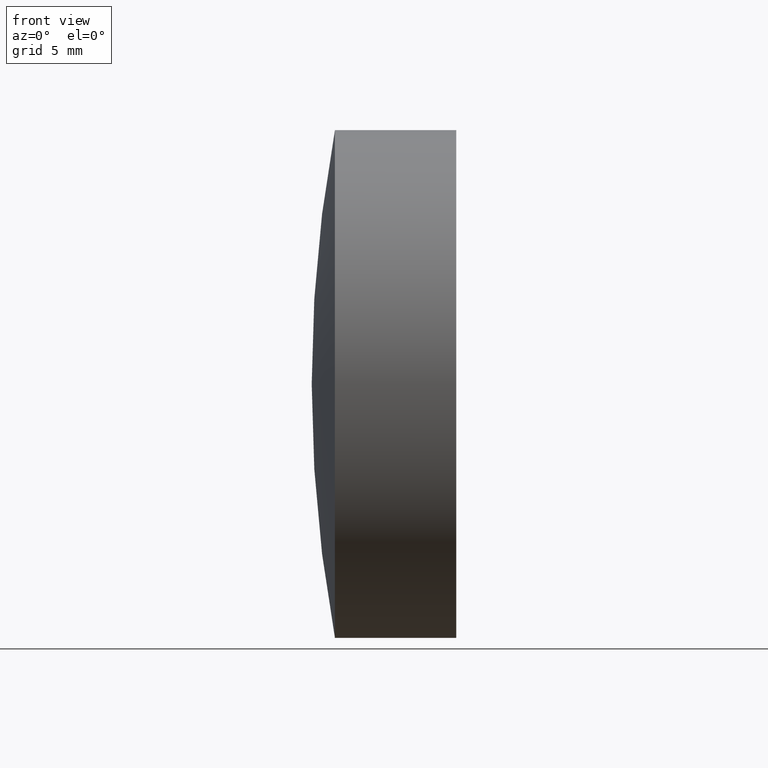
[diagram: clean part render]
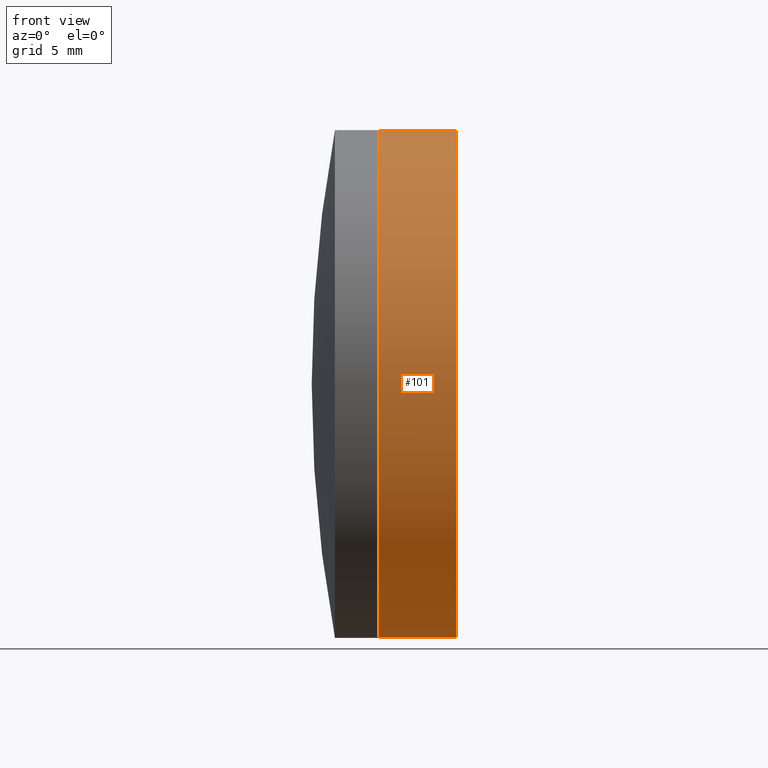
[diagram: same view with one face highlighted and labeled with its STEP entity id]
A machine part, front view. The second image highlights one B-rep face of the part: STEP entity #101.
In plain terms, the highlighted cylindrical surface (partial cylindrical patch) has radius 12.7 mm, axis along (-1, -0, -0).
Its self-contained STEP definition (entity closure, byte-faithful):
#7 = VERTEX_POINT ( 'NONE', #73 ) ;
#10 = VECTOR ( 'NONE', #180, 1000.000000000000000 ) ;
#16 = EDGE_CURVE ( 'NONE', #194, #93, #87, .T. ) ;
#26 = VECTOR ( 'NONE', #263, 1000.000000000000000 ) ;
#41 = CARTESIAN_POINT ( 'NONE',  ( -0.5519199926577972300, 0.0000000000000000000, 0.0000000000000000000 ) ) ;
#45 = CARTESIAN_POINT ( 'NONE',  ( -0.5519199926577972300, 0.0000000000000000000, 12.70000000000005400 ) ) ;
#53 = EDGE_CURVE ( 'NONE', #7, #152, #311, .T. ) ;
#57 = DIRECTION ( 'NONE',  ( 0.0000000000000000000, 0.0000000000000000000, 1.000000000000000000 ) ) ;
#70 = CARTESIAN_POINT ( 'NONE',  ( -0.5519199926577972300, 1.555301434917145300E-015, -12.70000000000005400 ) ) ;
#71 = EDGE_LOOP ( 'NONE', ( #339, #319, #228, #103 ) ) ;
#73 = CARTESIAN_POINT ( 'NONE',  ( 91.47548615089289100, 0.0000000000000000000, -12.70000000000005400 ) ) ;
#76 = EDGE_CURVE ( 'NONE', #7, #194, #178, .T. ) ;
#79 = CARTESIAN_POINT ( 'NONE',  ( 87.57155005280489500, 0.0000000000000000000, 0.0000000000000000000 ) ) ;
#85 = CIRCLE ( 'NONE', #315, 12.70000000000005300 ) ;
#87 = LINE ( 'NONE', #45, #10 ) ;
#93 = VERTEX_POINT ( 'NONE', #279 ) ;
#101 = ADVANCED_FACE ( 'NONE', ( #260 ), #111, .T. ) ;
#103 = ORIENTED_EDGE ( 'NONE', *, *, #163, .F. ) ;
#111 = CYLINDRICAL_SURFACE ( 'NONE', #265, 12.70000000000005400 ) ;
#115 = AXIS2_PLACEMENT_3D ( 'NONE', #340, #149, #305 ) ;
#120 = DIRECTION ( 'NONE',  ( -1.000000000000000000, -0.0000000000000000000, -0.0000000000000000000 ) ) ;
#136 = CARTESIAN_POINT ( 'NONE',  ( 91.47548615089289100, -1.555301434917145500E-015, 12.70000000000005400 ) ) ;
#139 = CARTESIAN_POINT ( 'NONE',  ( 87.57155005280489500, 1.555301434917143000E-015, -12.70000000000007400 ) ) ;
#149 = DIRECTION ( 'NONE',  ( -1.000000000000000000, -0.0000000000000000000, -0.0000000000000000000 ) ) ;
#152 = VERTEX_POINT ( 'NONE', #139 ) ;
#163 = EDGE_CURVE ( 'NONE', #152, #93, #85, .T. ) ;
#178 = CIRCLE ( 'NONE', #115, 12.70000000000005400 ) ;
#180 = DIRECTION ( 'NONE',  ( -1.000000000000000000, -0.0000000000000000000, -0.0000000000000000000 ) ) ;
#194 = VERTEX_POINT ( 'NONE', #136 ) ;
#215 = DIRECTION ( 'NONE',  ( -1.000000000000000000, -0.0000000000000000000, -0.0000000000000000000 ) ) ;
#227 = DIRECTION ( 'NONE',  ( 0.0000000000000000000, 0.0000000000000000000, 1.000000000000000000 ) ) ;
#228 = ORIENTED_EDGE ( 'NONE', *, *, #16, .T. ) ;
#260 = FACE_OUTER_BOUND ( 'NONE', #71, .T. ) ;
#263 = DIRECTION ( 'NONE',  ( -1.000000000000000000, -0.0000000000000000000, -0.0000000000000000000 ) ) ;
#265 = AXIS2_PLACEMENT_3D ( 'NONE', #41, #120, #227 ) ;
#279 = CARTESIAN_POINT ( 'NONE',  ( 87.57155005280489500, 0.0000000000000000000, 12.70000000000003700 ) ) ;
#305 = DIRECTION ( 'NONE',  ( 0.0000000000000000000, 0.0000000000000000000, 1.000000000000000000 ) ) ;
#311 = LINE ( 'NONE', #70, #26 ) ;
#315 = AXIS2_PLACEMENT_3D ( 'NONE', #79, #215, #57 ) ;
#319 = ORIENTED_EDGE ( 'NONE', *, *, #76, .T. ) ;
#339 = ORIENTED_EDGE ( 'NONE', *, *, #53, .F. ) ;
#340 = CARTESIAN_POINT ( 'NONE',  ( 91.47548615089287700, 0.0000000000000000000, 0.0000000000000000000 ) ) ;